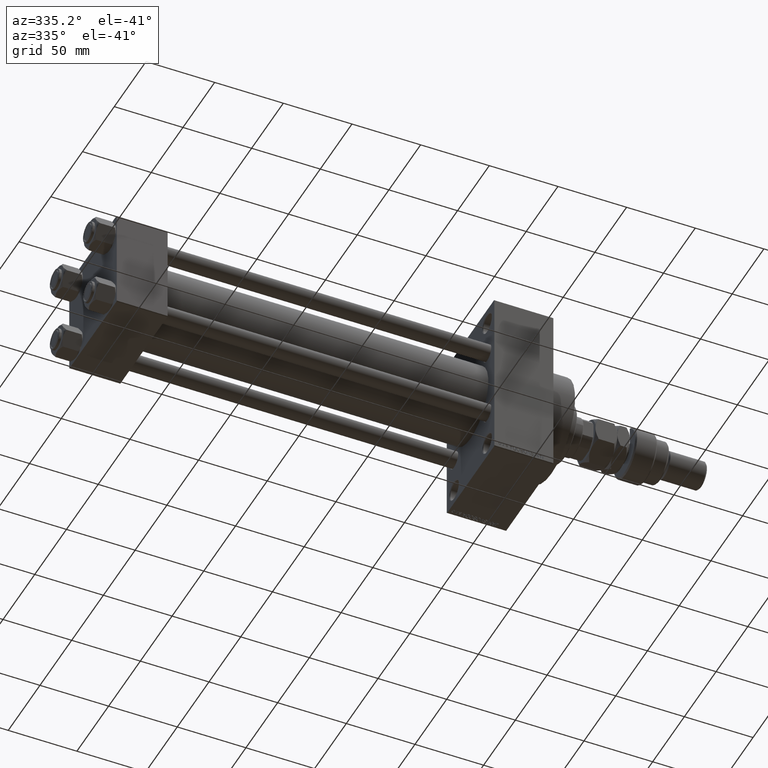
[diagram: clean part render]
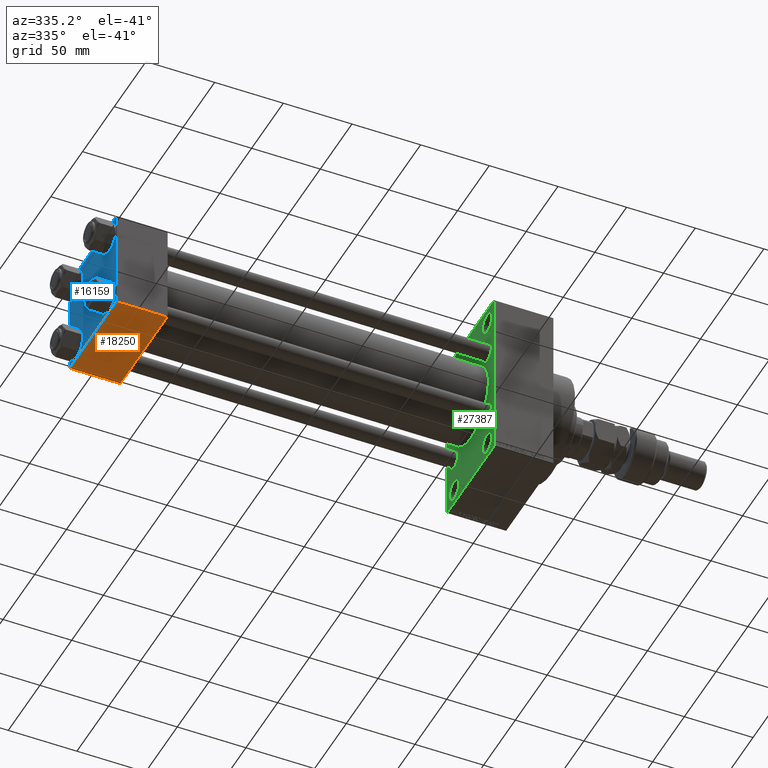
[diagram: same view with three faces highlighted in distinct colors, each labeled with its STEP entity id]
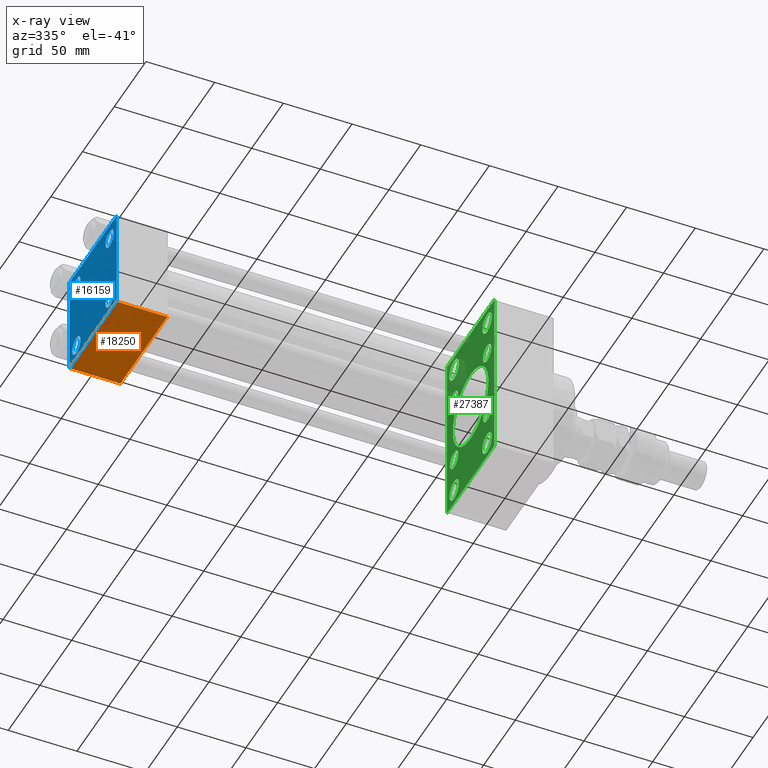
[diagram: x-ray of the same camera — body ghosted, the three highlighted faces saturated]
A machine part, auxiliary view with three faces highlighted in distinct colors.
The next image is the same camera in x-ray (body ghosted, the three faces saturated) — at least one of them is partly hidden behind the body in this view.
Their STEP definitions:

[orange] entity #18250 — the highlighted planar face has unit normal (0, 0, -1).
#795 = EDGE_CURVE ( 'NONE', #30292, #24726, #42698, .T. ) ;
#2591 = DIRECTION ( 'NONE',  ( 0.000000000000000000, 1.000000000000000000, 9.251858538542972814E-17 ) ) ;
#4000 = EDGE_CURVE ( 'NONE', #30292, #37163, #37683, .T. ) ;
#4475 = AXIS2_PLACEMENT_3D ( 'NONE', #47856, #43890, #2591 ) ;
#4584 = LINE ( 'NONE', #47999, #18467 ) ;
#4897 = DIRECTION ( 'NONE',  ( 0.000000000000000000, -1.000000000000000000, -9.251858538542972814E-17 ) ) ;
#5019 = EDGE_CURVE ( 'NONE', #31376, #37163, #4584, .T. ) ;
#5417 = LINE ( 'NONE', #28502, #37434 ) ;
#6561 = PLANE ( 'NONE',  #4475 ) ;
#11537 = VECTOR ( 'NONE', #14900, 1000.000000000000000 ) ;
#14277 = FACE_OUTER_BOUND ( 'NONE', #22923, .T. ) ;
#14612 = ORIENTED_EDGE ( 'NONE', *, *, #795, .T. ) ;
#14900 = DIRECTION ( 'NONE',  ( 1.000000000000000000, 0.000000000000000000, 0.000000000000000000 ) ) ;
#15355 = CARTESIAN_POINT ( 'NONE',  ( 0.000000000000000000, 37.49999999999999289, -37.50000000000000000 ) ) ;
#18250 = ADVANCED_FACE ( 'NONE', ( #14277 ), #6561, .T. ) ;
#18467 = VECTOR ( 'NONE', #24470, 1000.000000000000000 ) ;
#19826 = ORIENTED_EDGE ( 'NONE', *, *, #4000, .F. ) ;
#22343 = CARTESIAN_POINT ( 'NONE',  ( 37.00000000000000000, 36.99999999999997868, -37.50000000000000000 ) ) ;
#22923 = EDGE_LOOP ( 'NONE', ( #19826, #14612, #37883, #50665 ) ) ;
#24470 = DIRECTION ( 'NONE',  ( -1.000000000000000000, 0.000000000000000000, 0.000000000000000000 ) ) ;
#24726 = VERTEX_POINT ( 'NONE', #44077 ) ;
#28502 = CARTESIAN_POINT ( 'NONE',  ( 37.00000000000000000, 37.49999999999999289, -37.50000000000000000 ) ) ;
#30292 = VERTEX_POINT ( 'NONE', #37862 ) ;
#31308 = CARTESIAN_POINT ( 'NONE',  ( 37.00000000000000000, -37.00000000000002132, -37.50000000000000711 ) ) ;
#31376 = VERTEX_POINT ( 'NONE', #31308 ) ;
#34413 = DIRECTION ( 'NONE',  ( 0.000000000000000000, -1.000000000000000000, -9.251858538542972814E-17 ) ) ;
#37163 = VERTEX_POINT ( 'NONE', #41922 ) ;
#37434 = VECTOR ( 'NONE', #4897, 1000.000000000000000 ) ;
#37683 = LINE ( 'NONE', #15355, #47171 ) ;
#37862 = CARTESIAN_POINT ( 'NONE',  ( 0.000000000000000000, 36.99999999999997868, -37.50000000000000000 ) ) ;
#37883 = ORIENTED_EDGE ( 'NONE', *, *, #45963, .T. ) ;
#41922 = CARTESIAN_POINT ( 'NONE',  ( 0.000000000000000000, -37.00000000000002132, -37.50000000000000711 ) ) ;
#42698 = LINE ( 'NONE', #22343, #11537 ) ;
#43890 = DIRECTION ( 'NONE',  ( 0.000000000000000000, 9.251858538542972814E-17, -1.000000000000000000 ) ) ;
#44077 = CARTESIAN_POINT ( 'NONE',  ( 37.00000000000000000, 36.99999999999997868, -37.50000000000000000 ) ) ;
#45963 = EDGE_CURVE ( 'NONE', #24726, #31376, #5417, .T. ) ;
#47171 = VECTOR ( 'NONE', #34413, 1000.000000000000000 ) ;
#47856 = CARTESIAN_POINT ( 'NONE',  ( 37.00000000000000000, 37.49999999999999289, -37.50000000000000000 ) ) ;
#47999 = CARTESIAN_POINT ( 'NONE',  ( 0.000000000000000000, -37.00000000000002132, -37.50000000000000711 ) ) ;
#50665 = ORIENTED_EDGE ( 'NONE', *, *, #5019, .T. ) ;

[blue] entity #16159 — the highlighted planar face has unit normal (-1, 0, 0).
#178 = EDGE_CURVE ( 'NONE', #9223, #9931, #33520, .T. ) ;
#420 = DIRECTION ( 'NONE',  ( 0.000000000000000000, 0.7071067811865474617, -0.7071067811865474617 ) ) ;
#699 = VECTOR ( 'NONE', #51070, 1000.000000000000114 ) ;
#725 = CARTESIAN_POINT ( 'NONE',  ( 0.000000000000000000, -37.50000000000000000, -37.00000000000003553 ) ) ;
#757 = VERTEX_POINT ( 'NONE', #8922 ) ;
#1510 = VECTOR ( 'NONE', #3557, 1000.000000000000000 ) ;
#2351 = CARTESIAN_POINT ( 'NONE',  ( 0.000000000000000000, -26.14999999999999147, -32.65000000000002700 ) ) ;
#2685 = CARTESIAN_POINT ( 'NONE',  ( 0.000000000000000000, 26.14999999999999858, 32.65000000000002700 ) ) ;
#3001 = FACE_BOUND ( 'NONE', #10903, .T. ) ;
#3373 = CARTESIAN_POINT ( 'NONE',  ( 0.000000000000000000, 37.49999999999999289, -36.99999999999998579 ) ) ;
#3557 = DIRECTION ( 'NONE',  ( 0.000000000000000000, -1.000000000000000000, -9.251858538542971581E-17 ) ) ;
#3636 = EDGE_CURVE ( 'NONE', #757, #29171, #8644, .T. ) ;
#3982 = EDGE_CURVE ( 'NONE', #18276, #30292, #42625, .T. ) ;
#4000 = EDGE_CURVE ( 'NONE', #30292, #37163, #37683, .T. ) ;
#4180 = CARTESIAN_POINT ( 'NONE',  ( 0.000000000000000000, -26.14999999999999147, -19.64999999999999503 ) ) ;
#4605 = DIRECTION ( 'NONE',  ( 1.000000000000000000, -0.000000000000000000, 0.000000000000000000 ) ) ;
#4730 = EDGE_CURVE ( 'NONE', #30924, #27344, #42940, .T. ) ;
#4761 = CARTESIAN_POINT ( 'NONE',  ( 0.000000000000000000, 26.14999999999999858, -26.15000000000000213 ) ) ;
#5076 = LINE ( 'NONE', #32633, #47684 ) ;
#5476 = DIRECTION ( 'NONE',  ( 1.000000000000000000, -0.000000000000000000, 0.000000000000000000 ) ) ;
#5619 = CARTESIAN_POINT ( 'NONE',  ( 0.000000000000000000, 26.14999999999999858, 26.15000000000000213 ) ) ;
#5700 = ORIENTED_EDGE ( 'NONE', *, *, #33228, .F. ) ;
#5966 = EDGE_CURVE ( 'NONE', #7820, #39830, #48010, .T. ) ;
#6074 = ORIENTED_EDGE ( 'NONE', *, *, #24239, .T. ) ;
#6208 = VERTEX_POINT ( 'NONE', #2685 ) ;
#6223 = CARTESIAN_POINT ( 'NONE',  ( 0.000000000000000000, 37.49999999999999289, 37.50000000000000000 ) ) ;
#7135 = VECTOR ( 'NONE', #18169, 1000.000000000000000 ) ;
#7244 = DIRECTION ( 'NONE',  ( -0.000000000000000000, 0.000000000000000000, 1.000000000000000000 ) ) ;
#7416 = ORIENTED_EDGE ( 'NONE', *, *, #24175, .T. ) ;
#7523 = LINE ( 'NONE', #51739, #1510 ) ;
#7553 = DIRECTION ( 'NONE',  ( 1.000000000000000000, -0.000000000000000000, 0.000000000000000000 ) ) ;
#7820 = VERTEX_POINT ( 'NONE', #39526 ) ;
#7821 = CARTESIAN_POINT ( 'NONE',  ( -0.000000000000000000, -37.25000000000000000, 37.25000000000000000 ) ) ;
#8079 = DIRECTION ( 'NONE',  ( 0.000000000000000000, 0.000000000000000000, 1.000000000000000000 ) ) ;
#8111 = ORIENTED_EDGE ( 'NONE', *, *, #45735, .T. ) ;
#8262 = DIRECTION ( 'NONE',  ( 1.000000000000000000, -0.000000000000000000, 0.000000000000000000 ) ) ;
#8368 = VECTOR ( 'NONE', #16255, 1000.000000000000000 ) ;
#8594 = EDGE_LOOP ( 'NONE', ( #20710, #8111 ) ) ;
#8624 = CARTESIAN_POINT ( 'NONE',  ( 0.000000000000000000, -26.14999999999999147, 26.15000000000000924 ) ) ;
#8644 = LINE ( 'NONE', #24817, #43764 ) ;
#8683 = CARTESIAN_POINT ( 'NONE',  ( 0.000000000000000000, 37.49999999999999289, 37.00000000000000000 ) ) ;
#8711 = ORIENTED_EDGE ( 'NONE', *, *, #3636, .T. ) ;
#8816 = EDGE_LOOP ( 'NONE', ( #32941, #38644, #25241, #6074, #30016, #47362, #5700, #8711 ) ) ;
#8842 = CARTESIAN_POINT ( 'NONE',  ( 0.000000000000000000, -37.50000000000000711, 37.49999999999999289 ) ) ;
#8922 = CARTESIAN_POINT ( 'NONE',  ( 0.000000000000000000, 36.99999999999999289, 37.50000000000000000 ) ) ;
#9191 = AXIS2_PLACEMENT_3D ( 'NONE', #28232, #7553, #8079 ) ;
#9223 = VERTEX_POINT ( 'NONE', #4180 ) ;
#9419 = CIRCLE ( 'NONE', #16183, 6.500000000000023093 ) ;
#9931 = VERTEX_POINT ( 'NONE', #2351 ) ;
#10538 = CARTESIAN_POINT ( 'NONE',  ( 0.000000000000000000, -37.00000000000000711, 37.49999999999999289 ) ) ;
#10903 = EDGE_LOOP ( 'NONE', ( #42334, #18775 ) ) ;
#11176 = DIRECTION ( 'NONE',  ( 0.000000000000000000, 0.000000000000000000, 1.000000000000000000 ) ) ;
#12277 = CARTESIAN_POINT ( 'NONE',  ( 0.000000000000000000, 26.14999999999999858, 19.64999999999998437 ) ) ;
#13045 = DIRECTION ( 'NONE',  ( 0.000000000000000000, -0.7071067811865524577, 0.7071067811865426878 ) ) ;
#13095 = CARTESIAN_POINT ( 'NONE',  ( 0.000000000000000000, 26.14999999999999858, -26.15000000000000213 ) ) ;
#13357 = EDGE_CURVE ( 'NONE', #27344, #30924, #38117, .T. ) ;
#13385 = ORIENTED_EDGE ( 'NONE', *, *, #13357, .T. ) ;
#13788 = EDGE_CURVE ( 'NONE', #35654, #48742, #28848, .T. ) ;
#13860 = DIRECTION ( 'NONE',  ( 0.000000000000000000, 0.000000000000000000, 1.000000000000000000 ) ) ;
#14725 = EDGE_CURVE ( 'NONE', #7820, #21866, #39878, .T. ) ;
#15215 = FACE_OUTER_BOUND ( 'NONE', #8816, .T. ) ;
#15355 = CARTESIAN_POINT ( 'NONE',  ( 0.000000000000000000, 37.49999999999999289, -37.50000000000000000 ) ) ;
#15936 = CARTESIAN_POINT ( 'NONE',  ( 0.000000000000000000, -26.14999999999999147, -26.15000000000000924 ) ) ;
#16159 = ADVANCED_FACE ( 'NONE', ( #48016, #23183, #27407, #3001, #15215 ), #31374, .T. ) ;
#16183 = AXIS2_PLACEMENT_3D ( 'NONE', #5619, #26554, #13860 ) ;
#16255 = DIRECTION ( 'NONE',  ( 0.000000000000000000, 9.251858538542971581E-17, -1.000000000000000000 ) ) ;
#17867 = VECTOR ( 'NONE', #51504, 1000.000000000000114 ) ;
#18169 = DIRECTION ( 'NONE',  ( 0.000000000000000000, 0.000000000000000000, -1.000000000000000000 ) ) ;
#18276 = VERTEX_POINT ( 'NONE', #3373 ) ;
#18586 = CARTESIAN_POINT ( 'NONE',  ( 0.000000000000000000, 26.14999999999999858, -19.64999999999998792 ) ) ;
#18775 = ORIENTED_EDGE ( 'NONE', *, *, #44412, .T. ) ;
#19149 = AXIS2_PLACEMENT_3D ( 'NONE', #15936, #32093, #11176 ) ;
#20090 = CARTESIAN_POINT ( 'NONE',  ( 0.000000000000000000, -26.14999999999999147, 32.65000000000003411 ) ) ;
#20684 = CIRCLE ( 'NONE', #35874, 6.500000000000023093 ) ;
#20710 = ORIENTED_EDGE ( 'NONE', *, *, #178, .T. ) ;
#21213 = EDGE_CURVE ( 'NONE', #29171, #18276, #29573, .T. ) ;
#21383 = AXIS2_PLACEMENT_3D ( 'NONE', #37018, #5476, #49950 ) ;
#21866 = VERTEX_POINT ( 'NONE', #10538 ) ;
#23183 = FACE_BOUND ( 'NONE', #8594, .T. ) ;
#24175 = EDGE_CURVE ( 'NONE', #48742, #35654, #20684, .T. ) ;
#24239 = EDGE_CURVE ( 'NONE', #37163, #39830, #5076, .T. ) ;
#24497 = DIRECTION ( 'NONE',  ( 0.000000000000000000, 0.000000000000000000, 1.000000000000000000 ) ) ;
#24817 = CARTESIAN_POINT ( 'NONE',  ( 0.000000000000000000, 37.24999999999999289, 37.24999999999999289 ) ) ;
#25241 = ORIENTED_EDGE ( 'NONE', *, *, #4000, .T. ) ;
#26476 = ORIENTED_EDGE ( 'NONE', *, *, #13788, .T. ) ;
#26554 = DIRECTION ( 'NONE',  ( 1.000000000000000000, -0.000000000000000000, 0.000000000000000000 ) ) ;
#27344 = VERTEX_POINT ( 'NONE', #33604 ) ;
#27407 = FACE_BOUND ( 'NONE', #47483, .T. ) ;
#28001 = AXIS2_PLACEMENT_3D ( 'NONE', #4761, #37598, #40786 ) ;
#28232 = CARTESIAN_POINT ( 'NONE',  ( 0.000000000000000000, 26.14999999999999858, 26.15000000000000213 ) ) ;
#28408 = CARTESIAN_POINT ( 'NONE',  ( 0.000000000000000000, -26.14999999999999147, 26.15000000000000924 ) ) ;
#28848 = CIRCLE ( 'NONE', #41522, 6.500000000000023093 ) ;
#29171 = VERTEX_POINT ( 'NONE', #8683 ) ;
#29573 = LINE ( 'NONE', #6223, #7135 ) ;
#30016 = ORIENTED_EDGE ( 'NONE', *, *, #5966, .F. ) ;
#30292 = VERTEX_POINT ( 'NONE', #37862 ) ;
#30924 = VERTEX_POINT ( 'NONE', #18586 ) ;
#31374 = PLANE ( 'NONE',  #42449 ) ;
#31591 = DIRECTION ( 'NONE',  ( 0.000000000000000000, 0.000000000000000000, 1.000000000000000000 ) ) ;
#32034 = CIRCLE ( 'NONE', #9191, 6.500000000000023093 ) ;
#32093 = DIRECTION ( 'NONE',  ( 1.000000000000000000, -0.000000000000000000, 0.000000000000000000 ) ) ;
#32633 = CARTESIAN_POINT ( 'NONE',  ( 0.000000000000000000, -37.24999999999975842, -37.25000000000027001 ) ) ;
#32941 = ORIENTED_EDGE ( 'NONE', *, *, #21213, .T. ) ;
#33228 = EDGE_CURVE ( 'NONE', #757, #21866, #7523, .T. ) ;
#33520 = CIRCLE ( 'NONE', #19149, 6.500000000000015987 ) ;
#33604 = CARTESIAN_POINT ( 'NONE',  ( 0.000000000000000000, 26.14999999999999858, -32.65000000000001990 ) ) ;
#33669 = AXIS2_PLACEMENT_3D ( 'NONE', #13095, #4605, #24497 ) ;
#34015 = CIRCLE ( 'NONE', #21383, 6.500000000000015987 ) ;
#34413 = DIRECTION ( 'NONE',  ( 0.000000000000000000, -1.000000000000000000, -9.251858538542972814E-17 ) ) ;
#34875 = ORIENTED_EDGE ( 'NONE', *, *, #4730, .T. ) ;
#35287 = CARTESIAN_POINT ( 'NONE',  ( 0.000000000000000000, -26.14999999999999147, 19.64999999999999147 ) ) ;
#35654 = VERTEX_POINT ( 'NONE', #20090 ) ;
#35874 = AXIS2_PLACEMENT_3D ( 'NONE', #28408, #8262, #31591 ) ;
#35997 = EDGE_CURVE ( 'NONE', #6208, #43397, #32034, .T. ) ;
#37018 = CARTESIAN_POINT ( 'NONE',  ( 0.000000000000000000, -26.14999999999999147, -26.15000000000000924 ) ) ;
#37163 = VERTEX_POINT ( 'NONE', #41922 ) ;
#37598 = DIRECTION ( 'NONE',  ( 1.000000000000000000, -0.000000000000000000, 0.000000000000000000 ) ) ;
#37683 = LINE ( 'NONE', #15355, #47171 ) ;
#37862 = CARTESIAN_POINT ( 'NONE',  ( 0.000000000000000000, 36.99999999999997868, -37.50000000000000000 ) ) ;
#38117 = CIRCLE ( 'NONE', #28001, 6.500000000000015987 ) ;
#38644 = ORIENTED_EDGE ( 'NONE', *, *, #3982, .T. ) ;
#39526 = CARTESIAN_POINT ( 'NONE',  ( 0.000000000000000000, -37.50000000000000711, 36.99999999999999289 ) ) ;
#39830 = VERTEX_POINT ( 'NONE', #725 ) ;
#39878 = LINE ( 'NONE', #7821, #17867 ) ;
#40786 = DIRECTION ( 'NONE',  ( 0.000000000000000000, 0.000000000000000000, 1.000000000000000000 ) ) ;
#41522 = AXIS2_PLACEMENT_3D ( 'NONE', #8624, #44886, #48594 ) ;
#41922 = CARTESIAN_POINT ( 'NONE',  ( 0.000000000000000000, -37.00000000000002132, -37.50000000000000711 ) ) ;
#42334 = ORIENTED_EDGE ( 'NONE', *, *, #35997, .T. ) ;
#42449 = AXIS2_PLACEMENT_3D ( 'NONE', #47504, #43528, #7244 ) ;
#42625 = LINE ( 'NONE', #46844, #699 ) ;
#42940 = CIRCLE ( 'NONE', #33669, 6.500000000000015987 ) ;
#43397 = VERTEX_POINT ( 'NONE', #12277 ) ;
#43528 = DIRECTION ( 'NONE',  ( -1.000000000000000000, 0.000000000000000000, -0.000000000000000000 ) ) ;
#43764 = VECTOR ( 'NONE', #420, 1000.000000000000114 ) ;
#44412 = EDGE_CURVE ( 'NONE', #43397, #6208, #9419, .T. ) ;
#44886 = DIRECTION ( 'NONE',  ( 1.000000000000000000, -0.000000000000000000, 0.000000000000000000 ) ) ;
#45735 = EDGE_CURVE ( 'NONE', #9931, #9223, #34015, .T. ) ;
#46844 = CARTESIAN_POINT ( 'NONE',  ( 0.000000000000000000, 37.24999999999998579, -37.24999999999998579 ) ) ;
#47171 = VECTOR ( 'NONE', #34413, 1000.000000000000000 ) ;
#47362 = ORIENTED_EDGE ( 'NONE', *, *, #14725, .T. ) ;
#47483 = EDGE_LOOP ( 'NONE', ( #34875, #13385 ) ) ;
#47504 = CARTESIAN_POINT ( 'NONE',  ( 0.000000000000000000, 0.000000000000000000, 0.000000000000000000 ) ) ;
#47684 = VECTOR ( 'NONE', #13045, 1000.000000000000000 ) ;
#48010 = LINE ( 'NONE', #8842, #8368 ) ;
#48016 = FACE_BOUND ( 'NONE', #49824, .T. ) ;
#48594 = DIRECTION ( 'NONE',  ( 0.000000000000000000, 0.000000000000000000, 1.000000000000000000 ) ) ;
#48742 = VERTEX_POINT ( 'NONE', #35287 ) ;
#49824 = EDGE_LOOP ( 'NONE', ( #26476, #7416 ) ) ;
#49950 = DIRECTION ( 'NONE',  ( 0.000000000000000000, 0.000000000000000000, 1.000000000000000000 ) ) ;
#51070 = DIRECTION ( 'NONE',  ( -0.000000000000000000, -0.7071067811865474617, -0.7071067811865474617 ) ) ;
#51504 = DIRECTION ( 'NONE',  ( -0.000000000000000000, 0.7071067811865474617, 0.7071067811865474617 ) ) ;
#51739 = CARTESIAN_POINT ( 'NONE',  ( 0.000000000000000000, 37.49999999999999289, 37.50000000000000000 ) ) ;

[green] entity #27387 — the highlighted planar face has unit normal (-1, 0, 0).
#87 = DIRECTION ( 'NONE',  ( 1.000000000000000000, -0.000000000000000000, 0.000000000000000000 ) ) ;
#893 = CARTESIAN_POINT ( 'NONE',  ( 274.9999999999999432, -25.99999999999999645, 52.50000000000000000 ) ) ;
#1469 = EDGE_LOOP ( 'NONE', ( #5833, #41724 ) ) ;
#1527 = VERTEX_POINT ( 'NONE', #51025 ) ;
#1563 = CIRCLE ( 'NONE', #24425, 28.00000000000000000 ) ;
#2176 = ORIENTED_EDGE ( 'NONE', *, *, #20951, .T. ) ;
#2361 = CARTESIAN_POINT ( 'NONE',  ( 274.9999999999999432, -26.14999999999999147, -26.15000000000000924 ) ) ;
#2564 = CIRCLE ( 'NONE', #45651, 7.499999999999951150 ) ;
#2572 = DIRECTION ( 'NONE',  ( 0.000000000000000000, 0.000000000000000000, 1.000000000000000000 ) ) ;
#2665 = AXIS2_PLACEMENT_3D ( 'NONE', #21857, #13914, #30060 ) ;
#2854 = LINE ( 'NONE', #24068, #22067 ) ;
#2916 = VERTEX_POINT ( 'NONE', #31025 ) ;
#2917 = EDGE_LOOP ( 'NONE', ( #51701, #8846 ) ) ;
#3080 = DIRECTION ( 'NONE',  ( 1.000000000000000000, -0.000000000000000000, 0.000000000000000000 ) ) ;
#3368 = CARTESIAN_POINT ( 'NONE',  ( 274.9999999999999432, -50.49999999999969447, 50.50000000000039080 ) ) ;
#3750 = DIRECTION ( 'NONE',  ( 0.000000000000000000, -1.000000000000000000, -1.850371707708594563E-16 ) ) ;
#4328 = EDGE_LOOP ( 'NONE', ( #5618, #22514 ) ) ;
#4432 = EDGE_CURVE ( 'NONE', #36704, #31752, #15930, .T. ) ;
#4807 = DIRECTION ( 'NONE',  ( 0.000000000000000000, 0.000000000000000000, -1.000000000000000000 ) ) ;
#4980 = DIRECTION ( 'NONE',  ( 0.000000000000000000, 0.000000000000000000, 1.000000000000000000 ) ) ;
#5023 = EDGE_CURVE ( 'NONE', #13639, #28863, #1563, .T. ) ;
#5105 = DIRECTION ( 'NONE',  ( 0.000000000000000000, 0.000000000000000000, 1.000000000000000000 ) ) ;
#5443 = AXIS2_PLACEMENT_3D ( 'NONE', #45253, #17472, #33100 ) ;
#5515 = DIRECTION ( 'NONE',  ( -0.000000000000000000, 0.000000000000000000, 1.000000000000000000 ) ) ;
#5618 = ORIENTED_EDGE ( 'NONE', *, *, #4432, .T. ) ;
#5833 = ORIENTED_EDGE ( 'NONE', *, *, #14995, .T. ) ;
#5914 = AXIS2_PLACEMENT_3D ( 'NONE', #7964, #29367, #4980 ) ;
#6386 = EDGE_CURVE ( 'NONE', #26588, #7683, #26969, .T. ) ;
#6589 = CARTESIAN_POINT ( 'NONE',  ( 274.9999999999999432, -50.49999999999945999, -50.50000000000086686 ) ) ;
#6680 = AXIS2_PLACEMENT_3D ( 'NONE', #2361, #34418, #23059 ) ;
#7131 = CARTESIAN_POINT ( 'NONE',  ( 274.9999999999999432, 26.14999999999999858, -26.15000000000000213 ) ) ;
#7596 = AXIS2_PLACEMENT_3D ( 'NONE', #39732, #44467, #32050 ) ;
#7683 = VERTEX_POINT ( 'NONE', #15301 ) ;
#7964 = CARTESIAN_POINT ( 'NONE',  ( 274.9999999999999432, -25.99999999999999645, 52.50000000000000000 ) ) ;
#8453 = CIRCLE ( 'NONE', #7596, 6.500000000000008882 ) ;
#8803 = EDGE_CURVE ( 'NONE', #11693, #13763, #20343, .T. ) ;
#8846 = ORIENTED_EDGE ( 'NONE', *, *, #45901, .T. ) ;
#9404 = DIRECTION ( 'NONE',  ( 1.000000000000000000, -0.000000000000000000, 0.000000000000000000 ) ) ;
#9501 = AXIS2_PLACEMENT_3D ( 'NONE', #17110, #9404, #37219 ) ;
#9841 = DIRECTION ( 'NONE',  ( 1.000000000000000000, -0.000000000000000000, 0.000000000000000000 ) ) ;
#9883 = CARTESIAN_POINT ( 'NONE',  ( 274.9999999999999432, -25.99999999999999645, -45.00000000000004263 ) ) ;
#10532 = FACE_BOUND ( 'NONE', #33400, .T. ) ;
#10867 = DIRECTION ( 'NONE',  ( 0.000000000000000000, -1.000000000000000000, -1.850371707708594563E-16 ) ) ;
#10957 = CIRCLE ( 'NONE', #22816, 28.00000000000000000 ) ;
#11008 = EDGE_CURVE ( 'NONE', #51316, #23051, #8453, .T. ) ;
#11037 = VERTEX_POINT ( 'NONE', #15643 ) ;
#11567 = CARTESIAN_POINT ( 'NONE',  ( 274.9999999999999432, 26.00000000000000000, -52.49999999999999289 ) ) ;
#11693 = VERTEX_POINT ( 'NONE', #47540 ) ;
#11947 = CARTESIAN_POINT ( 'NONE',  ( 274.9999999999999432, 26.14999999999999858, 19.64999999999999147 ) ) ;
#12104 = CARTESIAN_POINT ( 'NONE',  ( 274.9999999999999432, 26.14999999999999858, 26.15000000000000213 ) ) ;
#12506 = DIRECTION ( 'NONE',  ( 1.000000000000000000, 0.000000000000000000, 0.000000000000000000 ) ) ;
#12631 = CARTESIAN_POINT ( 'NONE',  ( 274.9999999999999432, 26.00000000000000000, 52.49999999999999289 ) ) ;
#12946 = EDGE_CURVE ( 'NONE', #39702, #27990, #2564, .T. ) ;
#13264 = EDGE_LOOP ( 'NONE', ( #49733, #46351 ) ) ;
#13471 = EDGE_CURVE ( 'NONE', #1527, #30403, #2854, .T. ) ;
#13484 = FACE_BOUND ( 'NONE', #32600, .T. ) ;
#13639 = VERTEX_POINT ( 'NONE', #46751 ) ;
#13763 = VERTEX_POINT ( 'NONE', #44342 ) ;
#13914 = DIRECTION ( 'NONE',  ( 1.000000000000000000, -0.000000000000000000, 0.000000000000000000 ) ) ;
#13999 = PLANE ( 'NONE',  #15774 ) ;
#14092 = CARTESIAN_POINT ( 'NONE',  ( 274.9999999999999432, -26.14999999999999147, 26.15000000000000924 ) ) ;
#14305 = DIRECTION ( 'NONE',  ( 0.000000000000000000, -0.7071067811865574537, 0.7071067811865376918 ) ) ;
#14577 = ORIENTED_EDGE ( 'NONE', *, *, #29036, .F. ) ;
#14713 = CIRCLE ( 'NONE', #51043, 7.499999999999951150 ) ;
#14850 = CARTESIAN_POINT ( 'NONE',  ( 274.9999999999999432, 37.50000000000000000, 63.99999999999998579 ) ) ;
#14863 = ORIENTED_EDGE ( 'NONE', *, *, #21831, .T. ) ;
#14956 = VERTEX_POINT ( 'NONE', #42217 ) ;
#14967 = CIRCLE ( 'NONE', #46249, 7.499999999999951150 ) ;
#14995 = EDGE_CURVE ( 'NONE', #27990, #39702, #38186, .T. ) ;
#15301 = CARTESIAN_POINT ( 'NONE',  ( 274.9999999999999432, -26.14999999999999147, -32.65000000000001990 ) ) ;
#15556 = DIRECTION ( 'NONE',  ( 0.000000000000000000, 0.000000000000000000, 1.000000000000000000 ) ) ;
#15643 = CARTESIAN_POINT ( 'NONE',  ( 274.9999999999999432, 26.14999999999999858, -19.64999999999999503 ) ) ;
#15774 = AXIS2_PLACEMENT_3D ( 'NONE', #22465, #38091, #5515 ) ;
#15930 = CIRCLE ( 'NONE', #21835, 7.499999999999951150 ) ;
#16579 = VERTEX_POINT ( 'NONE', #47058 ) ;
#16964 = VECTOR ( 'NONE', #21793, 1000.000000000000000 ) ;
#17110 = CARTESIAN_POINT ( 'NONE',  ( 274.9999999999999432, -26.14999999999999147, -26.15000000000000924 ) ) ;
#17472 = DIRECTION ( 'NONE',  ( 1.000000000000000000, -0.000000000000000000, 0.000000000000000000 ) ) ;
#17510 = ORIENTED_EDGE ( 'NONE', *, *, #36743, .T. ) ;
#17980 = FACE_BOUND ( 'NONE', #42411, .T. ) ;
#19003 = VERTEX_POINT ( 'NONE', #31346 ) ;
#19522 = CIRCLE ( 'NONE', #27108, 7.499999999999951150 ) ;
#20343 = CIRCLE ( 'NONE', #38043, 6.500000000000008882 ) ;
#20667 = CARTESIAN_POINT ( 'NONE',  ( 274.9999999999999432, 26.00000000000000000, 45.00000000000004263 ) ) ;
#20761 = ORIENTED_EDGE ( 'NONE', *, *, #8803, .T. ) ;
#20832 = VECTOR ( 'NONE', #14305, 999.9999999999998863 ) ;
#20951 = EDGE_CURVE ( 'NONE', #22588, #39607, #14713, .T. ) ;
#21074 = VERTEX_POINT ( 'NONE', #45434 ) ;
#21522 = CIRCLE ( 'NONE', #24060, 6.500000000000008882 ) ;
#21638 = LINE ( 'NONE', #49432, #39150 ) ;
#21793 = DIRECTION ( 'NONE',  ( 0.000000000000000000, -5.421010862427522170E-17, -1.000000000000000000 ) ) ;
#21831 = EDGE_CURVE ( 'NONE', #13763, #11693, #51082, .T. ) ;
#21835 = AXIS2_PLACEMENT_3D ( 'NONE', #12631, #45684, #28796 ) ;
#21857 = CARTESIAN_POINT ( 'NONE',  ( 274.9999999999999432, -25.99999999999999645, -52.49999999999999289 ) ) ;
#21927 = ORIENTED_EDGE ( 'NONE', *, *, #13471, .F. ) ;
#21995 = CARTESIAN_POINT ( 'NONE',  ( 274.9999999999999432, 26.00000000000000000, 52.49999999999999289 ) ) ;
#22067 = VECTOR ( 'NONE', #52345, 1000.000000000000000 ) ;
#22331 = ORIENTED_EDGE ( 'NONE', *, *, #5023, .T. ) ;
#22465 = CARTESIAN_POINT ( 'NONE',  ( 274.9999999999999432, 0.000000000000000000, 0.000000000000000000 ) ) ;
#22514 = ORIENTED_EDGE ( 'NONE', *, *, #36290, .T. ) ;
#22588 = VERTEX_POINT ( 'NONE', #50493 ) ;
#22629 = ORIENTED_EDGE ( 'NONE', *, *, #31995, .T. ) ;
#22777 = EDGE_LOOP ( 'NONE', ( #36253, #26363 ) ) ;
#22816 = AXIS2_PLACEMENT_3D ( 'NONE', #24706, #12506, #4807 ) ;
#23051 = VERTEX_POINT ( 'NONE', #35617 ) ;
#23059 = DIRECTION ( 'NONE',  ( 0.000000000000000000, 0.000000000000000000, 1.000000000000000000 ) ) ;
#23066 = DIRECTION ( 'NONE',  ( 1.000000000000000000, -0.000000000000000000, 0.000000000000000000 ) ) ;
#23320 = DIRECTION ( 'NONE',  ( 1.000000000000000000, -0.000000000000000000, 0.000000000000000000 ) ) ;
#24060 = AXIS2_PLACEMENT_3D ( 'NONE', #50267, #28896, #24931 ) ;
#24068 = CARTESIAN_POINT ( 'NONE',  ( 274.9999999999999432, -37.49999999999999289, 63.99999999999997158 ) ) ;
#24155 = ORIENTED_EDGE ( 'NONE', *, *, #11008, .T. ) ;
#24202 = DIRECTION ( 'NONE',  ( 1.000000000000000000, 0.000000000000000000, 0.000000000000000000 ) ) ;
#24425 = AXIS2_PLACEMENT_3D ( 'NONE', #44292, #24202, #42149 ) ;
#24706 = CARTESIAN_POINT ( 'NONE',  ( 274.9999999999999432, -2.602085213965210642E-15, 0.000000000000000000 ) ) ;
#24931 = DIRECTION ( 'NONE',  ( 0.000000000000000000, 0.000000000000000000, 1.000000000000000000 ) ) ;
#25151 = EDGE_CURVE ( 'NONE', #21074, #47770, #45579, .T. ) ;
#25560 = CARTESIAN_POINT ( 'NONE',  ( 274.9999999999999432, 26.00000000000000000, -45.00000000000004263 ) ) ;
#25674 = FACE_BOUND ( 'NONE', #22777, .T. ) ;
#26041 = CARTESIAN_POINT ( 'NONE',  ( 274.9999999999999432, 36.99999999999994316, 63.99999999999998579 ) ) ;
#26201 = EDGE_CURVE ( 'NONE', #19003, #30403, #34672, .T. ) ;
#26363 = ORIENTED_EDGE ( 'NONE', *, *, #41620, .T. ) ;
#26588 = VERTEX_POINT ( 'NONE', #46776 ) ;
#26969 = CIRCLE ( 'NONE', #6680, 6.500000000000008882 ) ;
#27083 = VECTOR ( 'NONE', #3750, 1000.000000000000000 ) ;
#27098 = EDGE_CURVE ( 'NONE', #11037, #42039, #48732, .T. ) ;
#27108 = AXIS2_PLACEMENT_3D ( 'NONE', #893, #44570, #33208 ) ;
#27387 = ADVANCED_FACE ( 'NONE', ( #25674, #49734, #13484, #46787, #10532, #29640, #42570, #49988, #17980, #38864 ), #13999, .T. ) ;
#27498 = LINE ( 'NONE', #3368, #37290 ) ;
#27990 = VERTEX_POINT ( 'NONE', #9883 ) ;
#28235 = ORIENTED_EDGE ( 'NONE', *, *, #37504, .T. ) ;
#28568 = CARTESIAN_POINT ( 'NONE',  ( 274.9999999999999432, -37.49999999999999289, -63.49999999999997158 ) ) ;
#28781 = ORIENTED_EDGE ( 'NONE', *, *, #39038, .T. ) ;
#28796 = DIRECTION ( 'NONE',  ( 0.000000000000000000, 0.000000000000000000, 1.000000000000000000 ) ) ;
#28863 = VERTEX_POINT ( 'NONE', #41096 ) ;
#28896 = DIRECTION ( 'NONE',  ( 1.000000000000000000, -0.000000000000000000, 0.000000000000000000 ) ) ;
#28956 = DIRECTION ( 'NONE',  ( -0.000000000000000000, -0.7071067811865573427, -0.7071067811865378028 ) ) ;
#29036 = EDGE_CURVE ( 'NONE', #42234, #16579, #35496, .T. ) ;
#29367 = DIRECTION ( 'NONE',  ( 1.000000000000000000, -0.000000000000000000, 0.000000000000000000 ) ) ;
#29379 = VECTOR ( 'NONE', #10867, 1000.000000000000000 ) ;
#29483 = CARTESIAN_POINT ( 'NONE',  ( 274.9999999999999432, 37.50000000000000000, 63.99999999999998579 ) ) ;
#29539 = AXIS2_PLACEMENT_3D ( 'NONE', #21995, #50280, #33905 ) ;
#29640 = FACE_BOUND ( 'NONE', #34276, .T. ) ;
#30060 = DIRECTION ( 'NONE',  ( 0.000000000000000000, 0.000000000000000000, 1.000000000000000000 ) ) ;
#30403 = VERTEX_POINT ( 'NONE', #28568 ) ;
#30478 = CIRCLE ( 'NONE', #5914, 7.499999999999951150 ) ;
#31025 = CARTESIAN_POINT ( 'NONE',  ( 274.9999999999999432, -25.99999999999999645, 59.99999999999995026 ) ) ;
#31346 = CARTESIAN_POINT ( 'NONE',  ( 274.9999999999999432, -36.99999999999993605, -64.00000000000001421 ) ) ;
#31752 = VERTEX_POINT ( 'NONE', #20667 ) ;
#31983 = DIRECTION ( 'NONE',  ( -0.000000000000000000, 0.7071067811865524577, 0.7071067811865426878 ) ) ;
#31995 = EDGE_CURVE ( 'NONE', #39607, #22588, #14967, .T. ) ;
#32050 = DIRECTION ( 'NONE',  ( 0.000000000000000000, 0.000000000000000000, 1.000000000000000000 ) ) ;
#32600 = EDGE_LOOP ( 'NONE', ( #22629, #2176 ) ) ;
#33100 = DIRECTION ( 'NONE',  ( 0.000000000000000000, 0.000000000000000000, 1.000000000000000000 ) ) ;
#33208 = DIRECTION ( 'NONE',  ( 0.000000000000000000, 0.000000000000000000, 1.000000000000000000 ) ) ;
#33400 = EDGE_LOOP ( 'NONE', ( #14863, #20761 ) ) ;
#33887 = CARTESIAN_POINT ( 'NONE',  ( 274.9999999999999432, -25.99999999999999645, -59.99999999999994316 ) ) ;
#33905 = DIRECTION ( 'NONE',  ( 0.000000000000000000, 0.000000000000000000, 1.000000000000000000 ) ) ;
#34276 = EDGE_LOOP ( 'NONE', ( #17510, #24155 ) ) ;
#34418 = DIRECTION ( 'NONE',  ( 1.000000000000000000, -0.000000000000000000, 0.000000000000000000 ) ) ;
#34626 = CIRCLE ( 'NONE', #37991, 6.500000000000008882 ) ;
#34672 = LINE ( 'NONE', #6589, #20832 ) ;
#35496 = LINE ( 'NONE', #14850, #29379 ) ;
#35617 = CARTESIAN_POINT ( 'NONE',  ( 274.9999999999999432, 26.14999999999999858, 32.65000000000001990 ) ) ;
#35797 = EDGE_LOOP ( 'NONE', ( #49963, #51233, #21927, #28781, #14577, #43504, #40811, #38840 ) ) ;
#35992 = DIRECTION ( 'NONE',  ( 0.000000000000000000, 0.000000000000000000, 1.000000000000000000 ) ) ;
#36253 = ORIENTED_EDGE ( 'NONE', *, *, #42146, .T. ) ;
#36290 = EDGE_CURVE ( 'NONE', #31752, #36704, #39696, .T. ) ;
#36704 = VERTEX_POINT ( 'NONE', #42882 ) ;
#36743 = EDGE_CURVE ( 'NONE', #23051, #51316, #34626, .T. ) ;
#37219 = DIRECTION ( 'NONE',  ( 0.000000000000000000, 0.000000000000000000, 1.000000000000000000 ) ) ;
#37290 = VECTOR ( 'NONE', #31983, 1000.000000000000000 ) ;
#37504 = EDGE_CURVE ( 'NONE', #28863, #13639, #10957, .T. ) ;
#37769 = DIRECTION ( 'NONE',  ( 0.000000000000000000, 0.7071067811865474617, -0.7071067811865474617 ) ) ;
#37991 = AXIS2_PLACEMENT_3D ( 'NONE', #12104, #23066, #51335 ) ;
#38043 = AXIS2_PLACEMENT_3D ( 'NONE', #14092, #9841, #42136 ) ;
#38091 = DIRECTION ( 'NONE',  ( -1.000000000000000000, 0.000000000000000000, -0.000000000000000000 ) ) ;
#38186 = CIRCLE ( 'NONE', #2665, 7.499999999999951150 ) ;
#38444 = EDGE_CURVE ( 'NONE', #47770, #19003, #44258, .T. ) ;
#38840 = ORIENTED_EDGE ( 'NONE', *, *, #25151, .T. ) ;
#38864 = FACE_OUTER_BOUND ( 'NONE', #35797, .T. ) ;
#39038 = EDGE_CURVE ( 'NONE', #1527, #16579, #27498, .T. ) ;
#39150 = VECTOR ( 'NONE', #37769, 1000.000000000000114 ) ;
#39373 = DIRECTION ( 'NONE',  ( 1.000000000000000000, -0.000000000000000000, 0.000000000000000000 ) ) ;
#39607 = VERTEX_POINT ( 'NONE', #25560 ) ;
#39696 = CIRCLE ( 'NONE', #29539, 7.499999999999951150 ) ;
#39702 = VERTEX_POINT ( 'NONE', #33887 ) ;
#39732 = CARTESIAN_POINT ( 'NONE',  ( 274.9999999999999432, 26.14999999999999858, 26.15000000000000213 ) ) ;
#40043 = CARTESIAN_POINT ( 'NONE',  ( 274.9999999999999432, 37.49999999999999289, -64.00000000000000000 ) ) ;
#40627 = CARTESIAN_POINT ( 'NONE',  ( 274.9999999999999432, 36.99999999999999289, -64.00000000000000000 ) ) ;
#40811 = ORIENTED_EDGE ( 'NONE', *, *, #41382, .T. ) ;
#41076 = VECTOR ( 'NONE', #28956, 1000.000000000000000 ) ;
#41096 = CARTESIAN_POINT ( 'NONE',  ( 274.9999999999999432, -2.602085213965210642E-15, 28.00000000000000000 ) ) ;
#41382 = EDGE_CURVE ( 'NONE', #51237, #21074, #49581, .T. ) ;
#41620 = EDGE_CURVE ( 'NONE', #14956, #2916, #30478, .T. ) ;
#41629 = CARTESIAN_POINT ( 'NONE',  ( 274.9999999999999432, 50.49999999999948841, -50.50000000000088107 ) ) ;
#41724 = ORIENTED_EDGE ( 'NONE', *, *, #12946, .T. ) ;
#42039 = VERTEX_POINT ( 'NONE', #51448 ) ;
#42136 = DIRECTION ( 'NONE',  ( 0.000000000000000000, 0.000000000000000000, 1.000000000000000000 ) ) ;
#42146 = EDGE_CURVE ( 'NONE', #2916, #14956, #19522, .T. ) ;
#42149 = DIRECTION ( 'NONE',  ( 0.000000000000000000, 0.000000000000000000, -1.000000000000000000 ) ) ;
#42217 = CARTESIAN_POINT ( 'NONE',  ( 274.9999999999999432, -25.99999999999999645, 45.00000000000004974 ) ) ;
#42234 = VERTEX_POINT ( 'NONE', #26041 ) ;
#42411 = EDGE_LOOP ( 'NONE', ( #28235, #22331 ) ) ;
#42570 = FACE_BOUND ( 'NONE', #13264, .T. ) ;
#42882 = CARTESIAN_POINT ( 'NONE',  ( 274.9999999999999432, 26.00000000000000000, 59.99999999999994316 ) ) ;
#43504 = ORIENTED_EDGE ( 'NONE', *, *, #48424, .T. ) ;
#44258 = LINE ( 'NONE', #40043, #27083 ) ;
#44292 = CARTESIAN_POINT ( 'NONE',  ( 274.9999999999999432, -2.602085213965210642E-15, 0.000000000000000000 ) ) ;
#44342 = CARTESIAN_POINT ( 'NONE',  ( 274.9999999999999432, -26.14999999999999147, 32.65000000000001990 ) ) ;
#44467 = DIRECTION ( 'NONE',  ( 1.000000000000000000, -0.000000000000000000, 0.000000000000000000 ) ) ;
#44570 = DIRECTION ( 'NONE',  ( 1.000000000000000000, -0.000000000000000000, 0.000000000000000000 ) ) ;
#45253 = CARTESIAN_POINT ( 'NONE',  ( 274.9999999999999432, -26.14999999999999147, 26.15000000000000924 ) ) ;
#45434 = CARTESIAN_POINT ( 'NONE',  ( 274.9999999999999432, 37.49999999999999289, -63.50000000000001421 ) ) ;
#45579 = LINE ( 'NONE', #41629, #41076 ) ;
#45651 = AXIS2_PLACEMENT_3D ( 'NONE', #49582, #87, #5105 ) ;
#45684 = DIRECTION ( 'NONE',  ( 1.000000000000000000, -0.000000000000000000, 0.000000000000000000 ) ) ;
#45901 = EDGE_CURVE ( 'NONE', #7683, #26588, #46688, .T. ) ;
#46176 = AXIS2_PLACEMENT_3D ( 'NONE', #7131, #23320, #35992 ) ;
#46249 = AXIS2_PLACEMENT_3D ( 'NONE', #11567, #39373, #15556 ) ;
#46351 = ORIENTED_EDGE ( 'NONE', *, *, #50086, .T. ) ;
#46688 = CIRCLE ( 'NONE', #9501, 6.500000000000008882 ) ;
#46751 = CARTESIAN_POINT ( 'NONE',  ( 274.9999999999999432, 8.269258236473784371E-16, -28.00000000000000000 ) ) ;
#46776 = CARTESIAN_POINT ( 'NONE',  ( 274.9999999999999432, -26.14999999999999147, -19.65000000000000213 ) ) ;
#46787 = FACE_BOUND ( 'NONE', #4328, .T. ) ;
#46892 = CARTESIAN_POINT ( 'NONE',  ( 274.9999999999999432, 37.50000000000000000, 63.49999999999992895 ) ) ;
#47058 = CARTESIAN_POINT ( 'NONE',  ( 274.9999999999999432, -36.99999999999992895, 63.99999999999997158 ) ) ;
#47540 = CARTESIAN_POINT ( 'NONE',  ( 274.9999999999999432, -26.14999999999999147, 19.65000000000000213 ) ) ;
#47579 = CARTESIAN_POINT ( 'NONE',  ( 274.9999999999999432, 26.00000000000000000, -52.49999999999999289 ) ) ;
#47770 = VERTEX_POINT ( 'NONE', #40627 ) ;
#48424 = EDGE_CURVE ( 'NONE', #42234, #51237, #21638, .T. ) ;
#48732 = CIRCLE ( 'NONE', #46176, 6.500000000000008882 ) ;
#49432 = CARTESIAN_POINT ( 'NONE',  ( 274.9999999999999432, 50.49999999999996447, 50.49999999999996447 ) ) ;
#49581 = LINE ( 'NONE', #29483, #16964 ) ;
#49582 = CARTESIAN_POINT ( 'NONE',  ( 274.9999999999999432, -25.99999999999999645, -52.49999999999999289 ) ) ;
#49733 = ORIENTED_EDGE ( 'NONE', *, *, #27098, .T. ) ;
#49734 = FACE_BOUND ( 'NONE', #1469, .T. ) ;
#49963 = ORIENTED_EDGE ( 'NONE', *, *, #38444, .T. ) ;
#49988 = FACE_BOUND ( 'NONE', #2917, .T. ) ;
#50086 = EDGE_CURVE ( 'NONE', #42039, #11037, #21522, .T. ) ;
#50267 = CARTESIAN_POINT ( 'NONE',  ( 274.9999999999999432, 26.14999999999999858, -26.15000000000000213 ) ) ;
#50280 = DIRECTION ( 'NONE',  ( 1.000000000000000000, -0.000000000000000000, 0.000000000000000000 ) ) ;
#50493 = CARTESIAN_POINT ( 'NONE',  ( 274.9999999999999432, 26.00000000000000000, -59.99999999999994316 ) ) ;
#51025 = CARTESIAN_POINT ( 'NONE',  ( 274.9999999999999432, -37.49999999999999289, 63.49999999999991473 ) ) ;
#51043 = AXIS2_PLACEMENT_3D ( 'NONE', #47579, #3080, #2572 ) ;
#51082 = CIRCLE ( 'NONE', #5443, 6.500000000000008882 ) ;
#51233 = ORIENTED_EDGE ( 'NONE', *, *, #26201, .T. ) ;
#51237 = VERTEX_POINT ( 'NONE', #46892 ) ;
#51316 = VERTEX_POINT ( 'NONE', #11947 ) ;
#51335 = DIRECTION ( 'NONE',  ( 0.000000000000000000, 0.000000000000000000, 1.000000000000000000 ) ) ;
#51448 = CARTESIAN_POINT ( 'NONE',  ( 274.9999999999999432, 26.14999999999999858, -32.65000000000001279 ) ) ;
#51701 = ORIENTED_EDGE ( 'NONE', *, *, #6386, .T. ) ;
#52345 = DIRECTION ( 'NONE',  ( 0.000000000000000000, 0.000000000000000000, -1.000000000000000000 ) ) ;